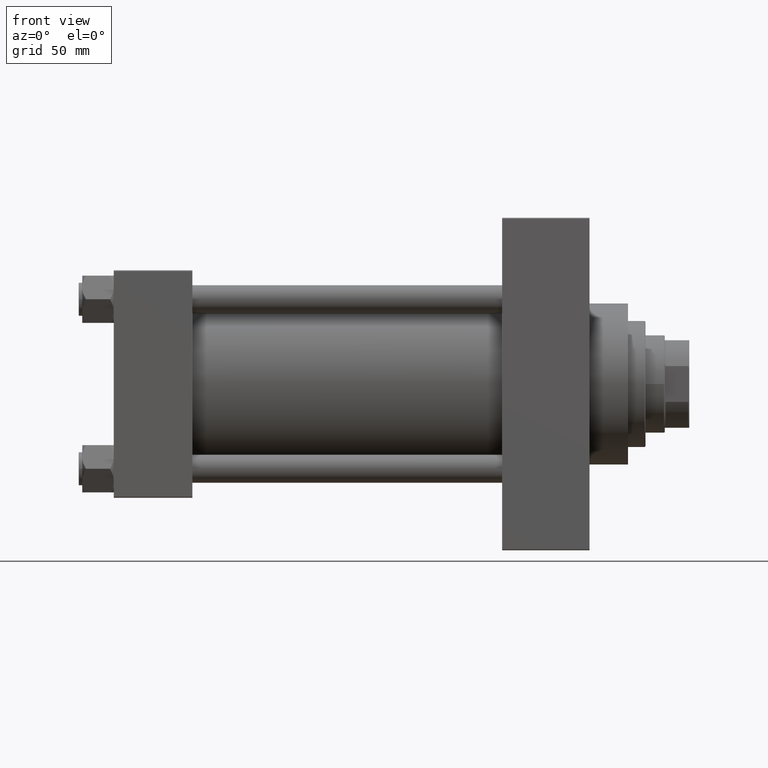
[diagram: clean part render]
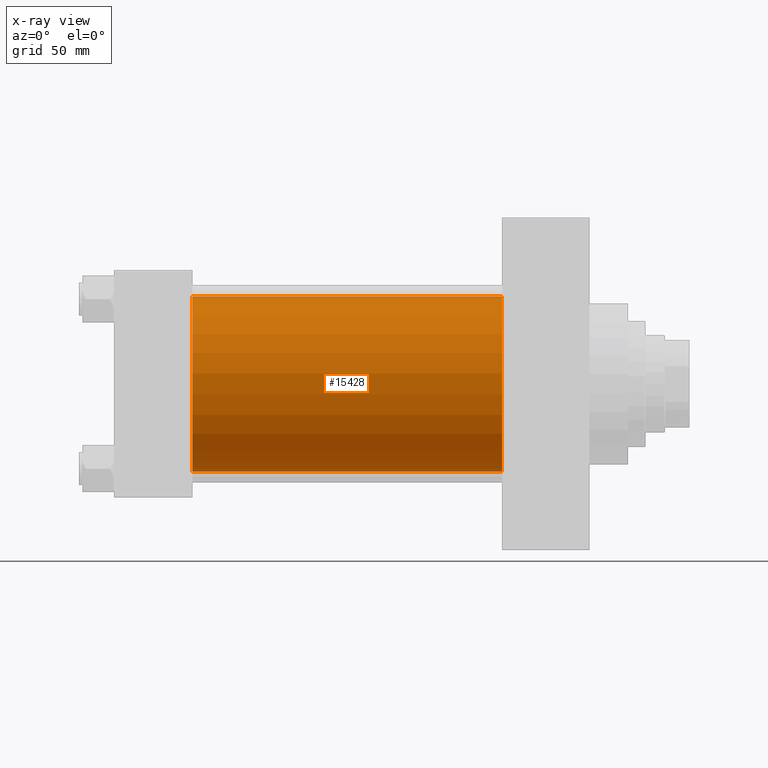
[diagram: x-ray — body ghosted, one internal face saturated and labeled with its STEP entity id]
A machine part, front view, then the same camera in x-ray: the body is ghosted and one INTERNAL B-rep face — a face not visible from any outside direction — is saturated and labeled: STEP entity #15428.
In plain terms, the highlighted cylindrical surface (partial cylindrical patch) has radius 50 mm, axis along (-1, -0, -0).
Its self-contained STEP definition (entity closure, byte-faithful):
#474 = CARTESIAN_POINT ( 'NONE',  ( 221.9999999999999716, -2.602085213965210642E-15, 0.000000000000000000 ) ) ;
#532 = CARTESIAN_POINT ( 'NONE',  ( 45.00000000000000000, -2.602085213965210642E-15, 50.00000000000000000 ) ) ;
#2004 = CARTESIAN_POINT ( 'NONE',  ( 221.9999999999999716, -2.602085213965210642E-15, 50.00000000000000000 ) ) ;
#2500 = AXIS2_PLACEMENT_3D ( 'NONE', #474, #22670, #44893 ) ;
#2767 = AXIS2_PLACEMENT_3D ( 'NONE', #18110, #36217, #25593 ) ;
#4691 = ORIENTED_EDGE ( 'NONE', *, *, #25719, .F. ) ;
#5549 = CARTESIAN_POINT ( 'NONE',  ( 45.00000000000000000, -2.602085213965210642E-15, 0.000000000000000000 ) ) ;
#6690 = CARTESIAN_POINT ( 'NONE',  ( 45.00000000000000000, 3.521148781771555838E-15, -50.00000000000000000 ) ) ;
#6805 = CYLINDRICAL_SURFACE ( 'NONE', #2767, 50.00000000000000000 ) ;
#7840 = ORIENTED_EDGE ( 'NONE', *, *, #32577, .F. ) ;
#8511 = CARTESIAN_POINT ( 'NONE',  ( 221.9999999999999716, -2.602085213965210642E-15, 50.00000000000000000 ) ) ;
#9405 = DIRECTION ( 'NONE',  ( 0.000000000000000000, 0.000000000000000000, -1.000000000000000000 ) ) ;
#14269 = FACE_OUTER_BOUND ( 'NONE', #26320, .T. ) ;
#15428 = ADVANCED_FACE ( 'NONE', ( #14269 ), #6805, .F. ) ;
#16831 = VERTEX_POINT ( 'NONE', #532 ) ;
#18110 = CARTESIAN_POINT ( 'NONE',  ( 221.9999999999999716, -2.602085213965210642E-15, 0.000000000000000000 ) ) ;
#18650 = CIRCLE ( 'NONE', #2500, 50.00000000000000000 ) ;
#18969 = VECTOR ( 'NONE', #45344, 1000.000000000000000 ) ;
#20375 = VERTEX_POINT ( 'NONE', #6690 ) ;
#20613 = CIRCLE ( 'NONE', #47584, 50.00000000000000000 ) ;
#22012 = ORIENTED_EDGE ( 'NONE', *, *, #39058, .T. ) ;
#22670 = DIRECTION ( 'NONE',  ( 1.000000000000000000, 0.000000000000000000, 0.000000000000000000 ) ) ;
#22880 = LINE ( 'NONE', #30589, #18969 ) ;
#22935 = EDGE_CURVE ( 'NONE', #47477, #20375, #22880, .T. ) ;
#25593 = DIRECTION ( 'NONE',  ( 0.000000000000000000, 0.000000000000000000, 1.000000000000000000 ) ) ;
#25719 = EDGE_CURVE ( 'NONE', #16831, #20375, #20613, .T. ) ;
#26320 = EDGE_LOOP ( 'NONE', ( #22012, #43131, #4691, #7840 ) ) ;
#27542 = DIRECTION ( 'NONE',  ( -1.000000000000000000, -0.000000000000000000, -0.000000000000000000 ) ) ;
#30589 = CARTESIAN_POINT ( 'NONE',  ( 221.9999999999999716, 3.521148781771555838E-15, -50.00000000000000000 ) ) ;
#32577 = EDGE_CURVE ( 'NONE', #36463, #16831, #34076, .T. ) ;
#34076 = LINE ( 'NONE', #8511, #41660 ) ;
#36217 = DIRECTION ( 'NONE',  ( -1.000000000000000000, -0.000000000000000000, -0.000000000000000000 ) ) ;
#36463 = VERTEX_POINT ( 'NONE', #2004 ) ;
#39058 = EDGE_CURVE ( 'NONE', #36463, #47477, #18650, .T. ) ;
#41622 = CARTESIAN_POINT ( 'NONE',  ( 221.9999999999999716, 3.521148781771555838E-15, -50.00000000000000000 ) ) ;
#41660 = VECTOR ( 'NONE', #27542, 1000.000000000000000 ) ;
#42446 = DIRECTION ( 'NONE',  ( 1.000000000000000000, 0.000000000000000000, 0.000000000000000000 ) ) ;
#43131 = ORIENTED_EDGE ( 'NONE', *, *, #22935, .T. ) ;
#44893 = DIRECTION ( 'NONE',  ( 0.000000000000000000, 0.000000000000000000, -1.000000000000000000 ) ) ;
#45344 = DIRECTION ( 'NONE',  ( -1.000000000000000000, -0.000000000000000000, -0.000000000000000000 ) ) ;
#47477 = VERTEX_POINT ( 'NONE', #41622 ) ;
#47584 = AXIS2_PLACEMENT_3D ( 'NONE', #5549, #42446, #9405 ) ;